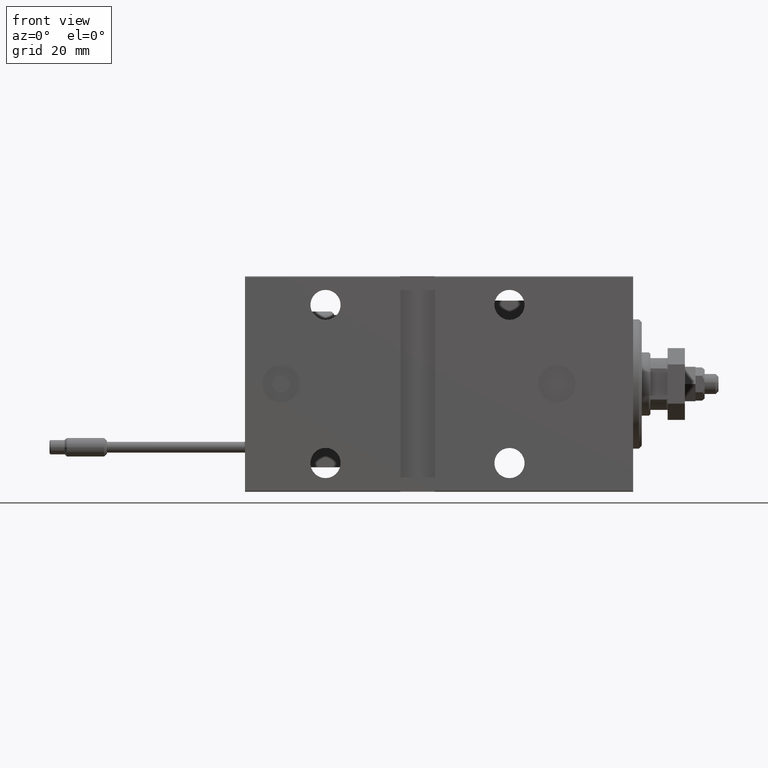
[diagram: clean part render]
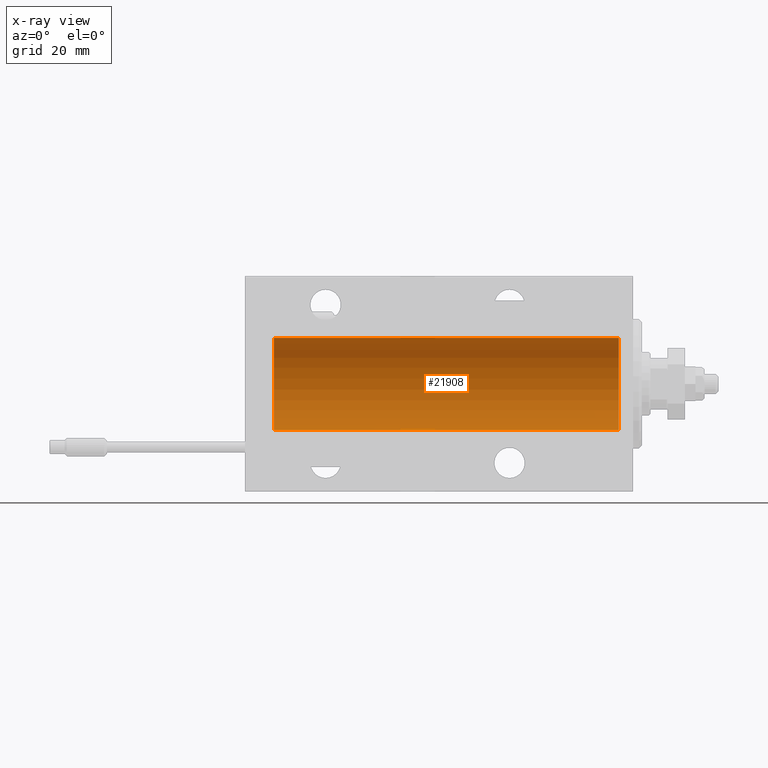
[diagram: x-ray — body ghosted, one internal face saturated and labeled with its STEP entity id]
A machine part, front view, then the same camera in x-ray: the body is ghosted and one INTERNAL B-rep face — a face not visible from any outside direction — is saturated and labeled: STEP entity #21908.
In plain terms, the highlighted cylindrical surface (partial cylindrical patch) has radius 16 mm, axis along (1, 0, -0).
Its self-contained STEP definition (entity closure, byte-faithful):
#424 = VERTEX_POINT ( 'NONE', #50099 ) ;
#2500 = CYLINDRICAL_SURFACE ( 'NONE', #40547, 16.00000000000000000 ) ;
#2521 = DIRECTION ( 'NONE',  ( -1.000000000000000000, 0.000000000000000000, 0.000000000000000000 ) ) ;
#5441 = ORIENTED_EDGE ( 'NONE', *, *, #9641, .F. ) ;
#5558 = CARTESIAN_POINT ( 'NONE',  ( 125.0000000000000000, 1.959434878635765131E-15, -16.00000000000000000 ) ) ;
#6048 = CIRCLE ( 'NONE', #26221, 16.00000000000000000 ) ;
#6540 = DIRECTION ( 'NONE',  ( -1.000000000000000000, -0.000000000000000000, -0.000000000000000000 ) ) ;
#9641 = EDGE_CURVE ( 'NONE', #46008, #34267, #47918, .T. ) ;
#13417 = ORIENTED_EDGE ( 'NONE', *, *, #37282, .T. ) ;
#15636 = CARTESIAN_POINT ( 'NONE',  ( 125.0000000000000000, 1.959434878635765131E-15, -16.00000000000000000 ) ) ;
#16942 = LINE ( 'NONE', #5558, #36891 ) ;
#17931 = DIRECTION ( 'NONE',  ( -1.000000000000000000, -0.000000000000000000, -0.000000000000000000 ) ) ;
#17948 = DIRECTION ( 'NONE',  ( 0.000000000000000000, 0.000000000000000000, 1.000000000000000000 ) ) ;
#18553 = ORIENTED_EDGE ( 'NONE', *, *, #40915, .F. ) ;
#20447 = EDGE_LOOP ( 'NONE', ( #5441, #13417, #30311, #18553 ) ) ;
#20962 = DIRECTION ( 'NONE',  ( 0.000000000000000000, 0.000000000000000000, 1.000000000000000000 ) ) ;
#20971 = DIRECTION ( 'NONE',  ( -1.000000000000000000, -0.000000000000000000, -0.000000000000000000 ) ) ;
#21908 = ADVANCED_FACE ( 'NONE', ( #37665 ), #2500, .F. ) ;
#24302 = CARTESIAN_POINT ( 'NONE',  ( 5.000000000000004441, 1.959434878635765131E-15, -16.00000000000000000 ) ) ;
#24786 = CARTESIAN_POINT ( 'NONE',  ( 125.0000000000000000, 0.000000000000000000, 0.000000000000000000 ) ) ;
#25767 = LINE ( 'NONE', #41243, #36997 ) ;
#26221 = AXIS2_PLACEMENT_3D ( 'NONE', #37193, #2521, #17948 ) ;
#29848 = EDGE_CURVE ( 'NONE', #39680, #424, #6048, .T. ) ;
#30311 = ORIENTED_EDGE ( 'NONE', *, *, #29848, .T. ) ;
#30325 = DIRECTION ( 'NONE',  ( 0.000000000000000000, 0.000000000000000000, 1.000000000000000000 ) ) ;
#31057 = CARTESIAN_POINT ( 'NONE',  ( 125.0000000000000000, 0.000000000000000000, 16.00000000000000000 ) ) ;
#32586 = AXIS2_PLACEMENT_3D ( 'NONE', #24786, #40257, #20962 ) ;
#34267 = VERTEX_POINT ( 'NONE', #31057 ) ;
#36891 = VECTOR ( 'NONE', #20971, 1000.000000000000000 ) ;
#36997 = VECTOR ( 'NONE', #6540, 1000.000000000000000 ) ;
#37193 = CARTESIAN_POINT ( 'NONE',  ( 5.000000000000004441, 0.000000000000000000, 0.000000000000000000 ) ) ;
#37282 = EDGE_CURVE ( 'NONE', #46008, #39680, #16942, .T. ) ;
#37665 = FACE_OUTER_BOUND ( 'NONE', #20447, .T. ) ;
#39680 = VERTEX_POINT ( 'NONE', #24302 ) ;
#40257 = DIRECTION ( 'NONE',  ( -1.000000000000000000, 0.000000000000000000, 0.000000000000000000 ) ) ;
#40547 = AXIS2_PLACEMENT_3D ( 'NONE', #45792, #17931, #30325 ) ;
#40915 = EDGE_CURVE ( 'NONE', #34267, #424, #25767, .T. ) ;
#41243 = CARTESIAN_POINT ( 'NONE',  ( 125.0000000000000000, 0.000000000000000000, 16.00000000000000000 ) ) ;
#45792 = CARTESIAN_POINT ( 'NONE',  ( 125.0000000000000000, 0.000000000000000000, 0.000000000000000000 ) ) ;
#46008 = VERTEX_POINT ( 'NONE', #15636 ) ;
#47918 = CIRCLE ( 'NONE', #32586, 16.00000000000000000 ) ;
#50099 = CARTESIAN_POINT ( 'NONE',  ( 5.000000000000004441, 0.000000000000000000, 16.00000000000000000 ) ) ;